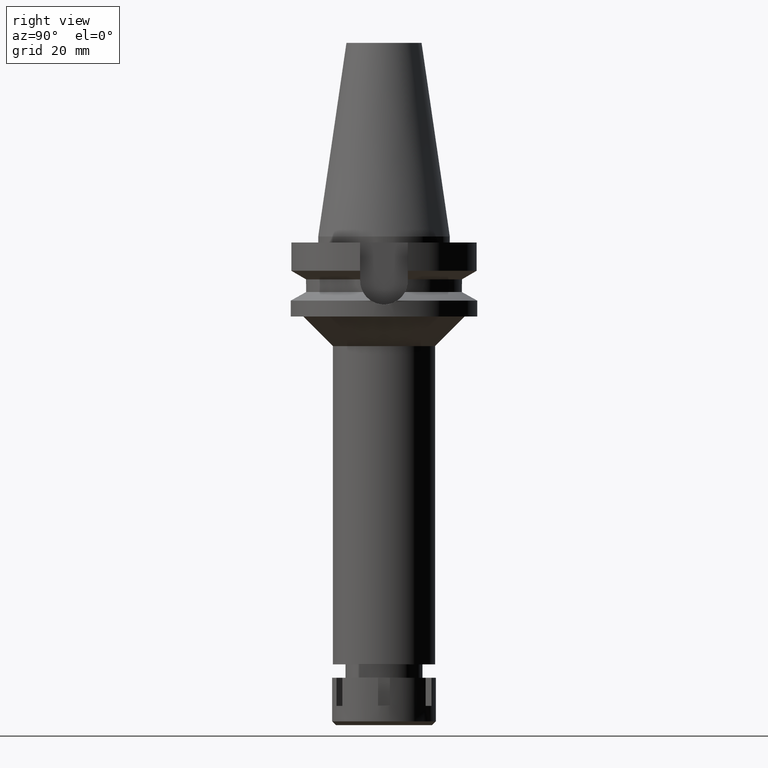
[diagram: clean part render]
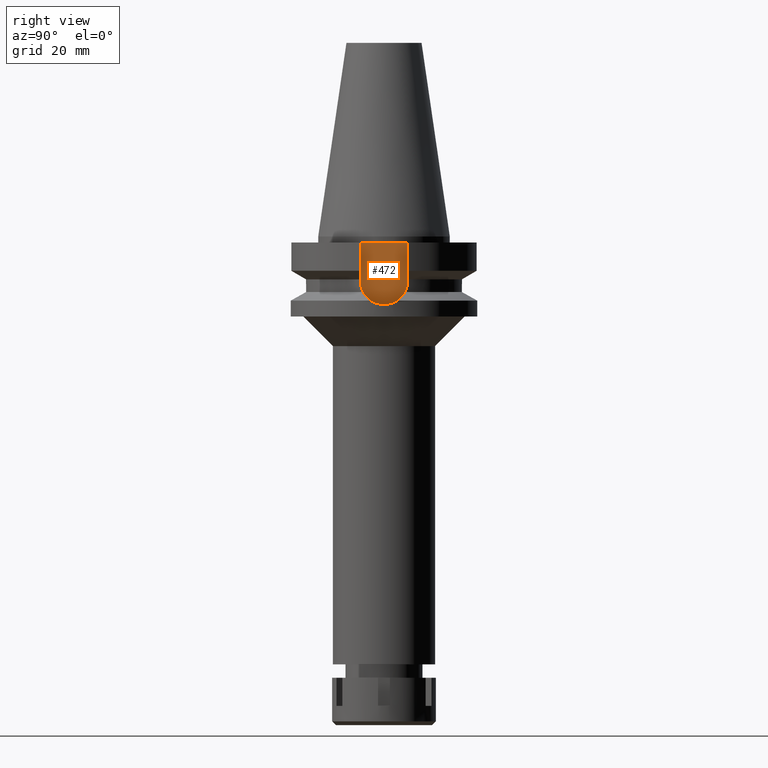
[diagram: same view with one face highlighted and labeled with its STEP entity id]
A machine part, right view. The second image highlights one B-rep face of the part: STEP entity #472.
In plain terms, the highlighted planar face has unit normal (1, 0, 0).
Its self-contained STEP definition (entity closure, byte-faithful):
#53 = CARTESIAN_POINT ( 'NONE',  ( 22.50000000000000000, 8.050000000000000711, -2.000000000000000000 ) ) ;
#142 = DIRECTION ( 'NONE',  ( 0.0000000000000000000, 1.000000000000000000, 0.0000000000000000000 ) ) ;
#185 = CARTESIAN_POINT ( 'NONE',  ( 22.50000000000000000, 0.0000000000000000000, 0.0000000000000000000 ) ) ;
#424 = CARTESIAN_POINT ( 'NONE',  ( 22.50000000000000000, -8.050000000000000711, -14.94999999999999929 ) ) ;
#470 = ORIENTED_EDGE ( 'NONE', *, *, #2799, .F. ) ;
#472 = ADVANCED_FACE ( 'NONE', ( #2478 ), #2715, .T. ) ;
#541 = AXIS2_PLACEMENT_3D ( 'NONE', #185, #1345, #2459 ) ;
#652 = VERTEX_POINT ( 'NONE', #1473 ) ;
#691 = VECTOR ( 'NONE', #3342, 1000.000000000000000 ) ;
#782 = EDGE_CURVE ( 'NONE', #1018, #652, #3141, .T. ) ;
#795 = LINE ( 'NONE', #1926, #691 ) ;
#835 = LINE ( 'NONE', #53, #919 ) ;
#875 = CARTESIAN_POINT ( 'NONE',  ( 22.50000000000000000, -8.050000000000000711, -2.000000000000000000 ) ) ;
#919 = VECTOR ( 'NONE', #2241, 1000.000000000000000 ) ;
#1018 = VERTEX_POINT ( 'NONE', #3450 ) ;
#1299 = VERTEX_POINT ( 'NONE', #3569 ) ;
#1345 = DIRECTION ( 'NONE',  ( 1.000000000000000000, 0.0000000000000000000, 0.0000000000000000000 ) ) ;
#1473 = CARTESIAN_POINT ( 'NONE',  ( 22.50000000000000000, -8.050000000000000711, -14.94999999999999929 ) ) ;
#1572 = EDGE_LOOP ( 'NONE', ( #2417, #3378, #470, #3263 ) ) ;
#1840 = DIRECTION ( 'NONE',  ( -1.000000000000000000, 0.0000000000000000000, 0.0000000000000000000 ) ) ;
#1926 = CARTESIAN_POINT ( 'NONE',  ( 22.50000000000000000, 8.050000000000000711, -2.000000000000000000 ) ) ;
#2063 = VERTEX_POINT ( 'NONE', #875 ) ;
#2241 = DIRECTION ( 'NONE',  ( 0.0000000000000000000, 0.0000000000000000000, -1.000000000000000000 ) ) ;
#2293 = EDGE_CURVE ( 'NONE', #1299, #2063, #795, .T. ) ;
#2417 = ORIENTED_EDGE ( 'NONE', *, *, #2972, .F. ) ;
#2453 = AXIS2_PLACEMENT_3D ( 'NONE', #3232, #1840, #142 ) ;
#2459 = DIRECTION ( 'NONE',  ( 0.0000000000000000000, 1.000000000000000000, 0.0000000000000000000 ) ) ;
#2478 = FACE_OUTER_BOUND ( 'NONE', #1572, .T. ) ;
#2715 = PLANE ( 'NONE',  #541 ) ;
#2799 = EDGE_CURVE ( 'NONE', #1299, #1018, #835, .T. ) ;
#2861 = DIRECTION ( 'NONE',  ( 0.0000000000000000000, 0.0000000000000000000, 1.000000000000000000 ) ) ;
#2902 = LINE ( 'NONE', #424, #3585 ) ;
#2972 = EDGE_CURVE ( 'NONE', #652, #2063, #2902, .T. ) ;
#3141 = CIRCLE ( 'NONE', #2453, 8.050000000000000711 ) ;
#3232 = CARTESIAN_POINT ( 'NONE',  ( 22.50000000000000000, 0.0000000000000000000, -14.94999999999999929 ) ) ;
#3263 = ORIENTED_EDGE ( 'NONE', *, *, #2293, .T. ) ;
#3342 = DIRECTION ( 'NONE',  ( 0.0000000000000000000, -1.000000000000000000, 0.0000000000000000000 ) ) ;
#3378 = ORIENTED_EDGE ( 'NONE', *, *, #782, .F. ) ;
#3450 = CARTESIAN_POINT ( 'NONE',  ( 22.50000000000000000, 8.050000000000000711, -14.94999999999999929 ) ) ;
#3569 = CARTESIAN_POINT ( 'NONE',  ( 22.50000000000000000, 8.050000000000000711, -2.000000000000000000 ) ) ;
#3585 = VECTOR ( 'NONE', #2861, 1000.000000000000000 ) ;